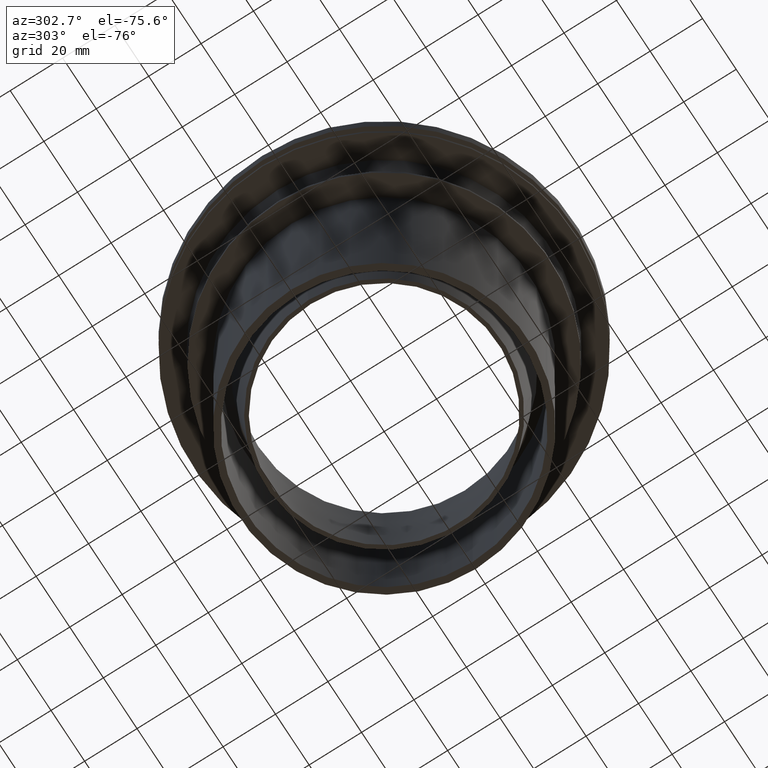
[diagram: clean part render]
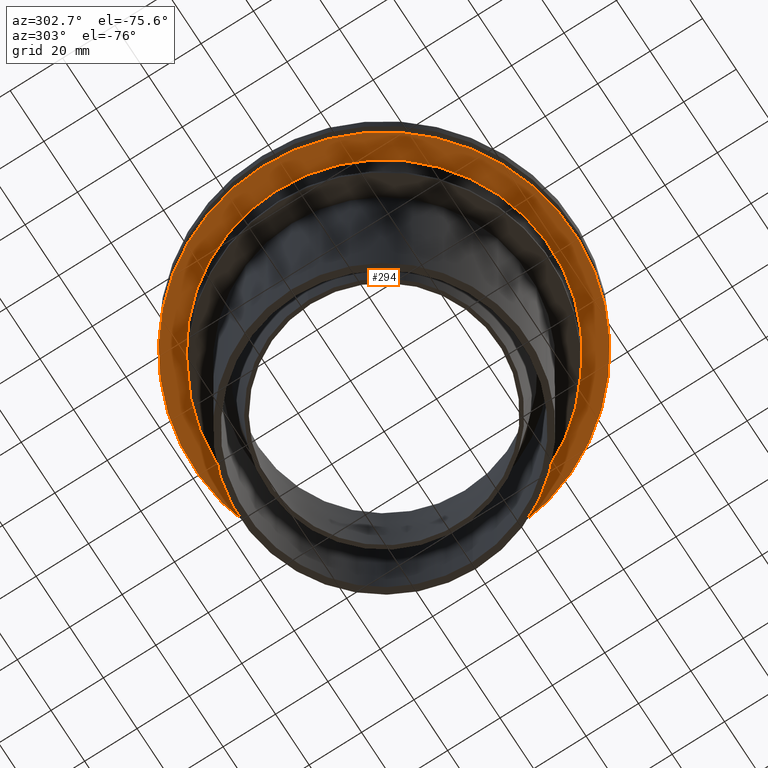
[diagram: same view with one face highlighted and labeled with its STEP entity id]
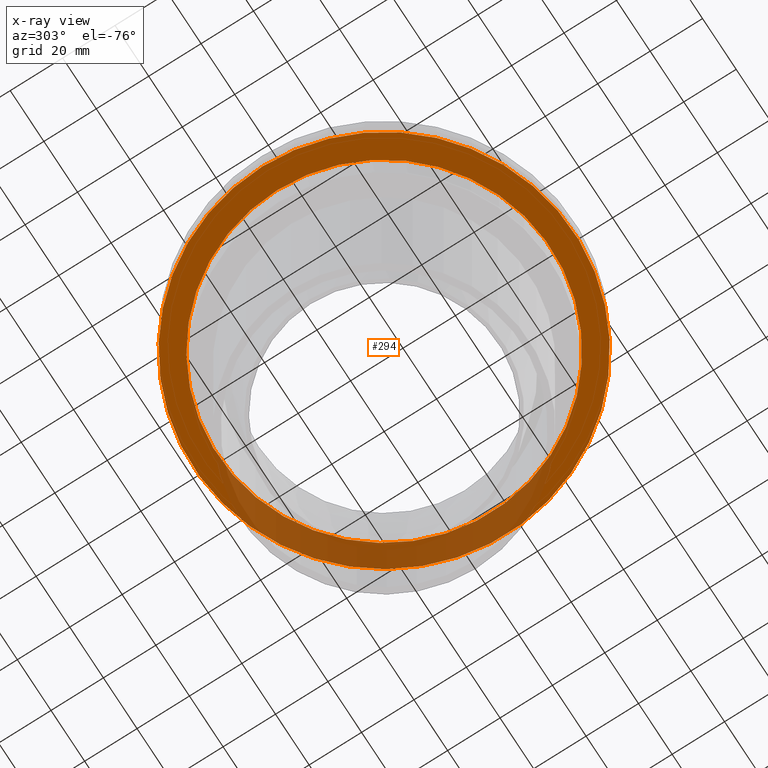
[diagram: x-ray of the same camera — body ghosted, the highlighted face saturated]
A machine part, auxiliary view. The second image highlights one B-rep face of the part: STEP entity #294.
The next image is the same camera in x-ray: the body ghosted, the highlighted face saturated — about 27% of this face is hidden behind the body in this view.
In plain terms, the highlighted conical surface has half-angle 83.62 deg.
Its self-contained STEP definition (entity closure, byte-faithful):
#18=CONICAL_SURFACE('',#351,63.556,1.45945195543957);
#56=ORIENTED_EDGE('',*,*,#104,.T.);
#57=ORIENTED_EDGE('',*,*,#105,.F.);
#104=EDGE_CURVE('',#130,#130,#156,.T.);
#105=EDGE_CURVE('',#131,#131,#157,.T.);
#130=VERTEX_POINT('',#522);
#131=VERTEX_POINT('',#524);
#156=CIRCLE('',#352,72.5);
#157=CIRCLE('',#353,63.556);
#186=EDGE_LOOP('',(#56));
#187=EDGE_LOOP('',(#57));
#238=FACE_BOUND('',#186,.T.);
#239=FACE_BOUND('',#187,.T.);
#294=ADVANCED_FACE('',(#238,#239),#18,.T.);
#351=AXIS2_PLACEMENT_3D('',#520,#416,#417);
#352=AXIS2_PLACEMENT_3D('',#521,#418,#419);
#353=AXIS2_PLACEMENT_3D('',#523,#420,#421);
#416=DIRECTION('',(0.,0.,1.));
#417=DIRECTION('',(1.,0.,0.));
#418=DIRECTION('',(0.,0.,-1.));
#419=DIRECTION('',(-1.,0.,0.));
#420=DIRECTION('',(0.,0.,-1.));
#421=DIRECTION('',(-1.,0.,0.));
#520=CARTESIAN_POINT('',(0.,0.,-15.));
#521=CARTESIAN_POINT('',(0.,0.,-14.));
#522=CARTESIAN_POINT('',(-72.5,0.,-14.));
#523=CARTESIAN_POINT('',(0.,0.,-15.));
#524=CARTESIAN_POINT('',(-63.556,0.,-15.));